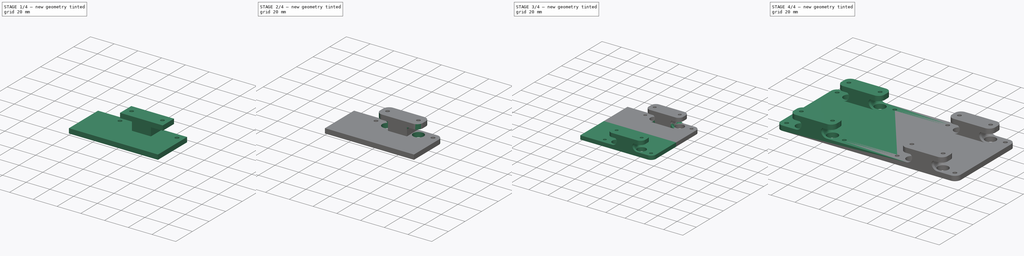
[diagram: build sequence overview — one tinted view per stage of 4, left to right]
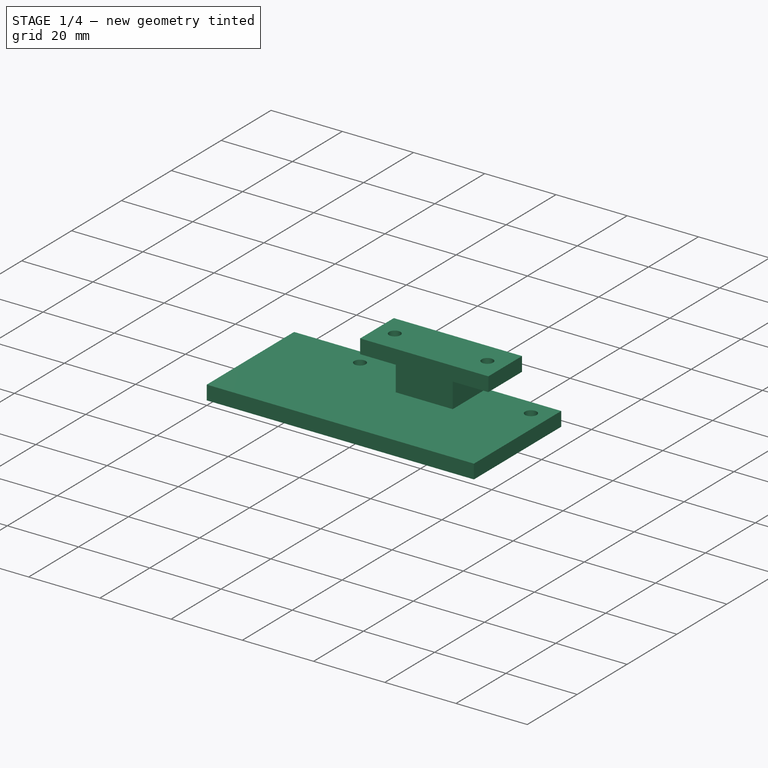
[diagram: stage 1 of 4 — iso view after this stage's code; geometry added in this stage tinted green]
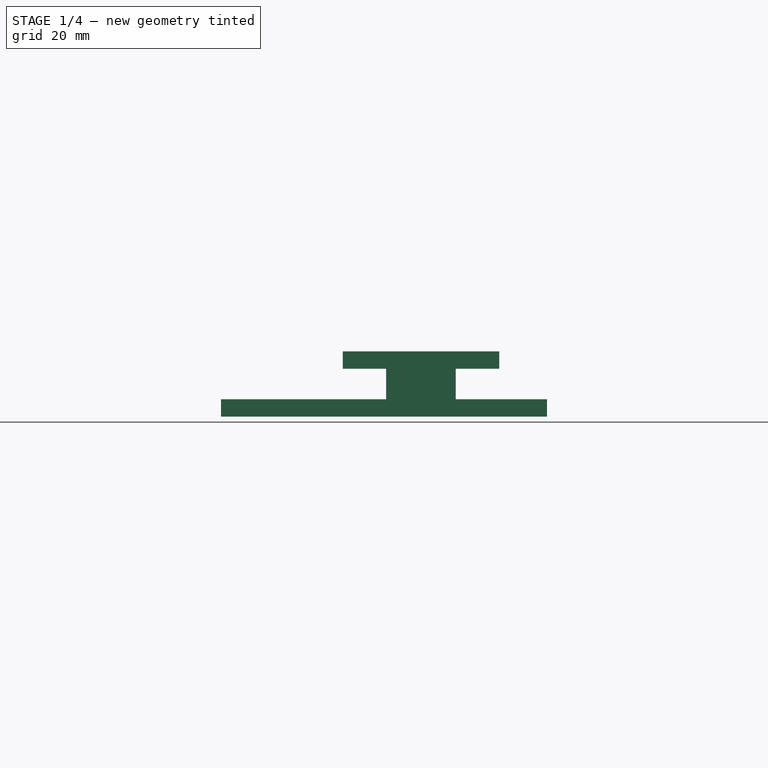
[diagram: stage 1 of 4 — front view after this stage's code; geometry added in this stage tinted green]
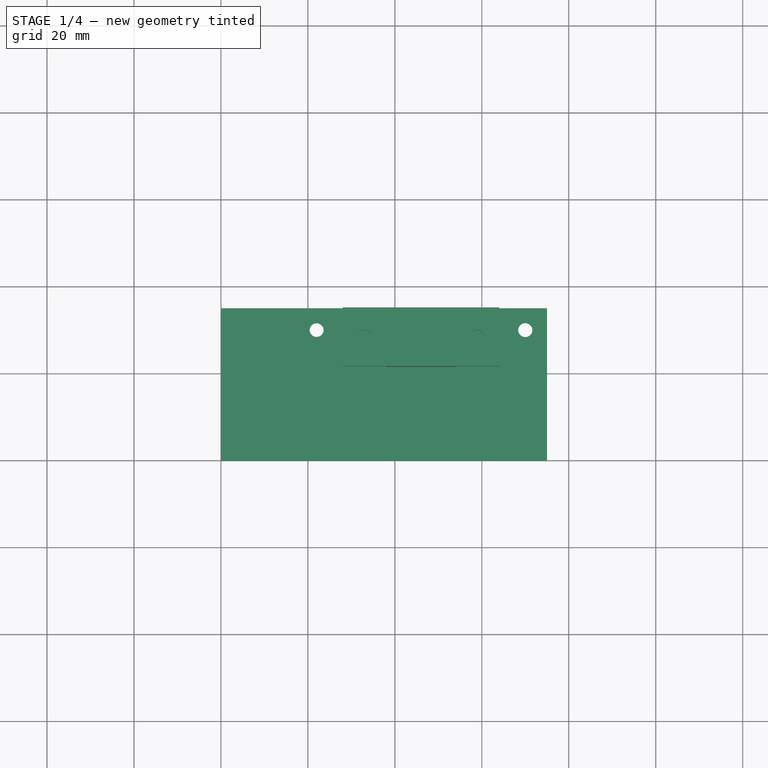
[diagram: stage 1 of 4 — top view after this stage's code; geometry added in this stage tinted green]
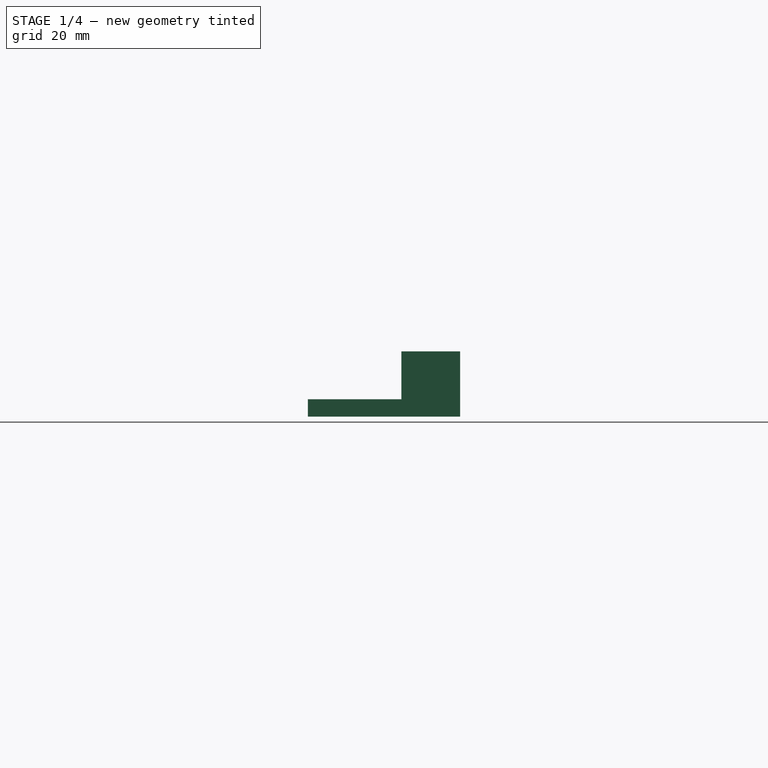
[diagram: stage 1 of 4 — right view after this stage's code; geometry added in this stage tinted green]
FCSTD DOCUMENT  (FreeCAD 0.18R14090 (Git))
Label: BedClamping3_Alt2
License: All rights reserved
LicenseURL: http://en.wikipedia.org/wiki/All_rights_reserved
objects: Sketcher::SketchObject×4, PartDesign::Pad×3, PartDesign::Fillet×2, Part::Mirroring×2, Part::MultiFuse×2, PartDesign::Plane×1, PartDesign::Pocket×1, PartDesign::Chamfer×1, PartDesign::Body×1, App::Part×1, Part::FeaturePython×1
note: 22 computed .brp shape members not serialized (recipe doc carries the construction recipe); baked Part::Feature solids carry a one-line shape summary decoded from their .brp

FEATURE [Sketcher::SketchObject] Sketch  label="C_BaseSketch"
  MapMode = 5
  Support = -> [XY_Plane001]
  sketch-geometry (9):
    g0: LineSegment StartX=0 StartY=0 StartZ=0 EndX=75 EndY=0 EndZ=0
    g1: LineSegment StartX=75 StartY=0 StartZ=0 EndX=75 EndY=35 EndZ=0
    g2: LineSegment StartX=75 StartY=35 StartZ=0 EndX=0 EndY=35 EndZ=0
    g3: LineSegment StartX=0 StartY=35 StartZ=0 EndX=0 EndY=0 EndZ=0
    g4: LineSegment [constr] StartX=70 StartY=35 StartZ=0 EndX=70 EndY=30 EndZ=0
    g5: LineSegment [constr] StartX=70 StartY=30 StartZ=0 EndX=75 EndY=30 EndZ=0
    g6: Circle CenterX=70 CenterY=30 CenterZ=0 NormalX=0 NormalY=0 NormalZ=1 AngleXU=0 Radius=1.63245
    g7: Circle CenterX=22 CenterY=30 CenterZ=0 NormalX=0 NormalY=0 NormalZ=1 AngleXU=0 Radius=1.60669
    g8: LineSegment [constr] StartX=70 StartY=30 StartZ=0 EndX=22 EndY=30 EndZ=0
  constraints (23):
    c: Coincident(g0,g1)
    c: Coincident(g1,g2)
    c: Coincident(g2,g3)
    c: Coincident(g3,g0)
    c: Horizontal(g0)
    c: Horizontal(g2)
    c: Vertical(g1)
    c: Vertical(g3)
    c: Coincident(g0,g-1)
    c: Distance(g1) = 35
    c: Distance(g2) = 75
    c: PointOnObject(g4,g2)
    c: Vertical(g4)
    c: Coincident(g5,g4)
    c: PointOnObject(g5,g1)
    c: Horizontal(g5)
    c: Equal(g5,g4)
    c: Distance(g4) = 5
    c: Coincident(g6,g4)
    c: Coincident(g8,g6)
    c: Coincident(g8,g7)
    c: Horizontal(g8)
    c: Distance(g8) = 48
FEATURE [PartDesign::Pad] Pad  label="C_BasePad"
  Length = 4
  Length2 = 100
  Profile = -> Sketch
  Type = 0
FEATURE [Sketcher::SketchObject] Sketch001  label="C_StandSketch"
  MapMode = 5
  Support = -> [XY_Plane001]
  sketch-geometry (4):
    g0: LineSegment StartX=38 StartY=35 StartZ=0 EndX=54 EndY=35 EndZ=0
    g1: LineSegment StartX=54 StartY=35 StartZ=0 EndX=54 EndY=21.5 EndZ=0
    g2: LineSegment StartX=54 StartY=21.5 StartZ=0 EndX=38 EndY=21.5 EndZ=0
    g3: LineSegment StartX=38 StartY=21.5 StartZ=0 EndX=38 EndY=35 EndZ=0
  constraints (12):
    c: Coincident(g0,g1)
    c: Coincident(g1,g2)
    c: Coincident(g2,g3)
    c: Coincident(g3,g0)
    c: Horizontal(g0)
    c: Horizontal(g2)
    c: Vertical(g1)
    c: Vertical(g3)
    c: Distance(g3) = 13.5
    c: Distance(g0) = 16
    c: DistanceX(g-2,g0) = 38
    c: DistanceY(g-1,g0) = 35
FEATURE [PartDesign::Pad] Pad001  label="C_StandPad"
  BaseFeature = -> Pad
  Length = 15
  Length2 = 100
  Profile = -> Sketch001
  Type = 0
FEATURE [PartDesign::Plane] DatumPlane  label="C_CarriageClipPlane"
  AttachmentOffset = pos=(0,0,11) rot=(0,0,1;0rad)
  MapMode = 5
  Placement = pos=(0,0,11) rot=(0,0,1;0rad)
  Support = -> [XY_Plane001]
FEATURE [Sketcher::SketchObject] Sketch002  label="C_CarriageClipSketch"
  ExternalGeometry = -> [Sketch001]
  MapMode = 5
  Placement = pos=(0,0,11) rot=(0,0,1;0rad)
  Support = -> [DatumPlane]
  sketch-geometry (14):
    g0: LineSegment StartX=64 StartY=35 StartZ=0 EndX=64 EndY=21.5 EndZ=0
    g1: LineSegment StartX=64 StartY=21.5 StartZ=0 EndX=28 EndY=21.5 EndZ=0
    g2: LineSegment StartX=28 StartY=21.5 StartZ=0 EndX=28 EndY=35 EndZ=0
    g3: LineSegment [constr] StartX=28 StartY=28.25 StartZ=0 EndX=33 EndY=28.25 EndZ=0
    g4: LineSegment [constr] StartX=33 StartY=28.25 StartZ=0 EndX=33 EndY=35 EndZ=0
    g5: LineSegment [constr] StartX=33 StartY=28.25 StartZ=0 EndX=33 EndY=21.5 EndZ=0
    g6: LineSegment [constr] StartX=59 StartY=35 StartZ=0 EndX=59 EndY=28.25 EndZ=0
    g7: LineSegment [constr] StartX=59 StartY=28.25 StartZ=0 EndX=59 EndY=21.5 EndZ=0
    g8: LineSegment [constr] StartX=59 StartY=28.25 StartZ=0 EndX=64 EndY=28.25 EndZ=0
    g9: Circle CenterX=33 CenterY=28.25 CenterZ=0 NormalX=0 NormalY=0 NormalZ=1 AngleXU=0 Radius=1.6
    g10: Circle CenterX=59 CenterY=28.25 CenterZ=0 NormalX=0 NormalY=0 NormalZ=1 AngleXU=0 Radius=1.6
    g11: LineSegment StartX=28 StartY=35 StartZ=0 EndX=38 EndY=35 EndZ=0
    g12: LineSegment StartX=38 StartY=35 StartZ=0 EndX=54 EndY=35 EndZ=0
    g13: LineSegment StartX=54 StartY=35 StartZ=0 EndX=64 EndY=35 EndZ=0
  constraints (40):
    c: Coincident(g0,g1)
    c: Coincident(g1,g2)
    c: Horizontal(g1)
    c: Vertical(g0)
    c: Vertical(g2)
    c: PointOnObject(g-3,g1)
    c: PointOnObject(g3,g2)
    c: Horizontal(g3)
    c: Coincident(g4,g3)
    c: Vertical(g4)
    c: Coincident(g5,g3)
    c: Vertical(g5)
    c: Equal(g5,g4)
    c: Vertical(g6)
    c: Coincident(g7,g6)
    c: PointOnObject(g7,g1)
    c: Vertical(g7)
    c: PointOnObject(g5,g1)
    c: Equal(g6,g7)
    c: Coincident(g8,g6)
    c: PointOnObject(g8,g0)
    c: Horizontal(g8)
    c: Equal(g8,g3)
    c: Distance(g3) = 5
    c: Coincident(g9,g3)
    c: Coincident(g10,g6)
    c: Equal(g10,g9)
    c: Radius(g9) = 1.6
    c: Distance(g9,g10) = 26
    c: Coincident(g11,g2)
    c: Coincident(g11,g-3)
    c: Horizontal(g11)
    c: Coincident(g12,g11)
    c: Coincident(g12,g-4)
    c: Coincident(g13,g12)
    c: Coincident(g13,g0)
    c: Horizontal(g13)
    c: Equal(g13,g11)
    c: PointOnObject(g4,g11)
    c: PointOnObject(g6,g13)
FEATURE [PartDesign::Pad] Pad002  label="C_CarriageClipPad"
  BaseFeature = -> Pad001
  Length = 4
  Length2 = 100
  Profile = -> Sketch002
  Type = 0
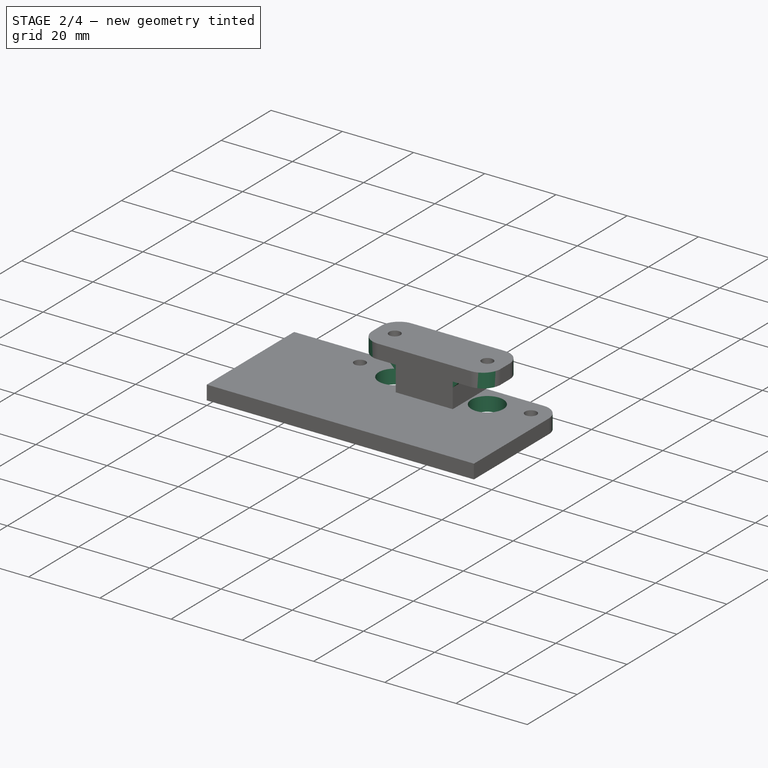
[diagram: stage 2 of 4 — iso view after this stage's code; geometry added in this stage tinted green]
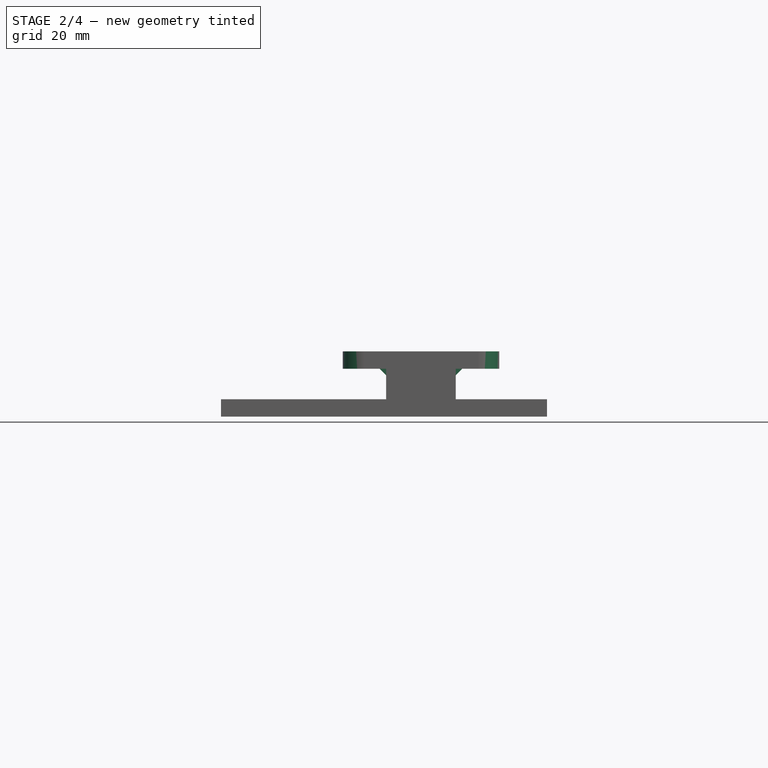
[diagram: stage 2 of 4 — front view after this stage's code; geometry added in this stage tinted green]
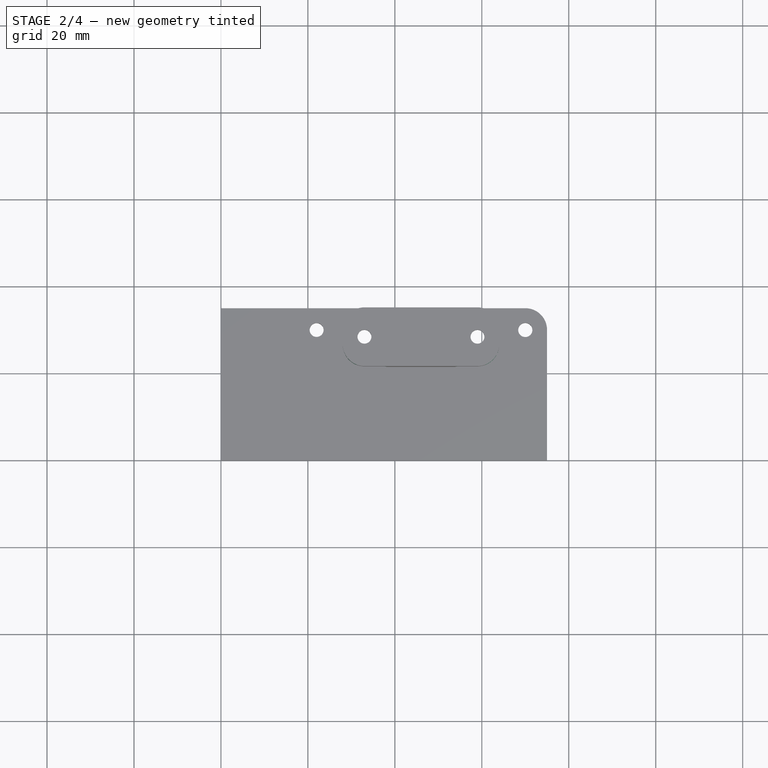
[diagram: stage 2 of 4 — top view after this stage's code; geometry added in this stage tinted green]
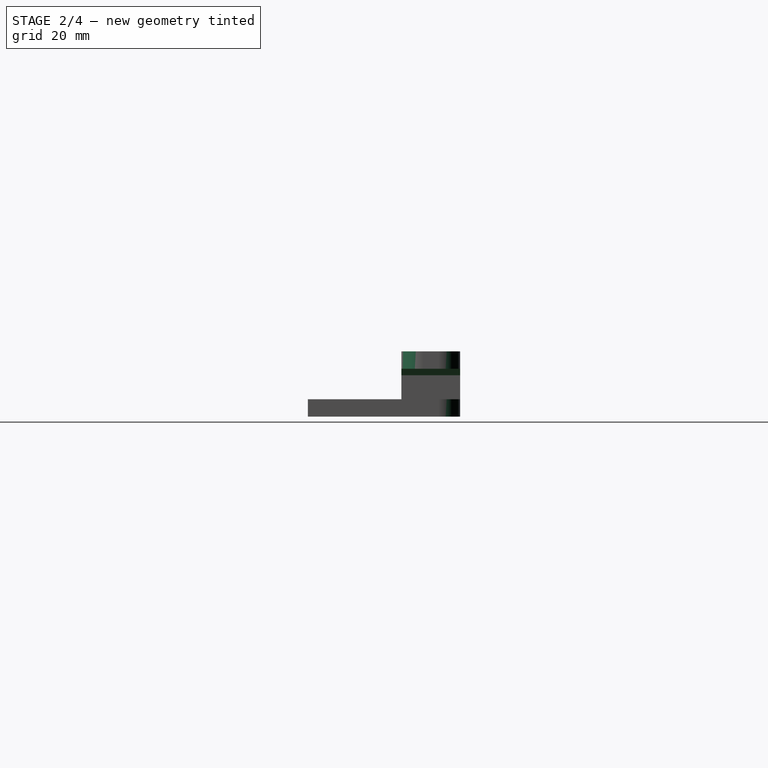
[diagram: stage 2 of 4 — right view after this stage's code; geometry added in this stage tinted green]
FEATURE [Sketcher::SketchObject] Sketch003  label="C_ScrewdriverHoleSketch"
  ExternalGeometry = -> [Sketch002]
  MapMode = 5
  Placement = pos=(0,0,11) rot=(0,0,1;0rad)
  Support = -> [DatumPlane]
  sketch-geometry (2):
    g0: Circle CenterX=33 CenterY=28.25 CenterZ=0 NormalX=0 NormalY=0 NormalZ=1 AngleXU=0 Radius=4.5
    g1: Circle CenterX=59 CenterY=28.25 CenterZ=0 NormalX=0 NormalY=0 NormalZ=1 AngleXU=0 Radius=4.5
  constraints (2):
    c: Equal(g1,g0)
    c: Radius(g0) = 4.5
FEATURE [PartDesign::Pocket] Pocket  label="C_ScrewdriverHolePocket"
  BaseFeature = -> Pad002
  Length = 5
  Length2 = 100
  Profile = -> Sketch003
  Type = 1
FEATURE [PartDesign::Fillet] Fillet  label="C_CornersFillet"
  Base = -> Pocket [Edge59,Edge61,Edge68,Edge70,Edge8]
  BaseFeature = -> Pocket
  Radius = 5
FEATURE [PartDesign::Chamfer] Chamfer  label="C_StandChamfer"
  Base = -> Fillet [Edge45,Edge40]
  BaseFeature = -> Fillet
  Size = 1.5
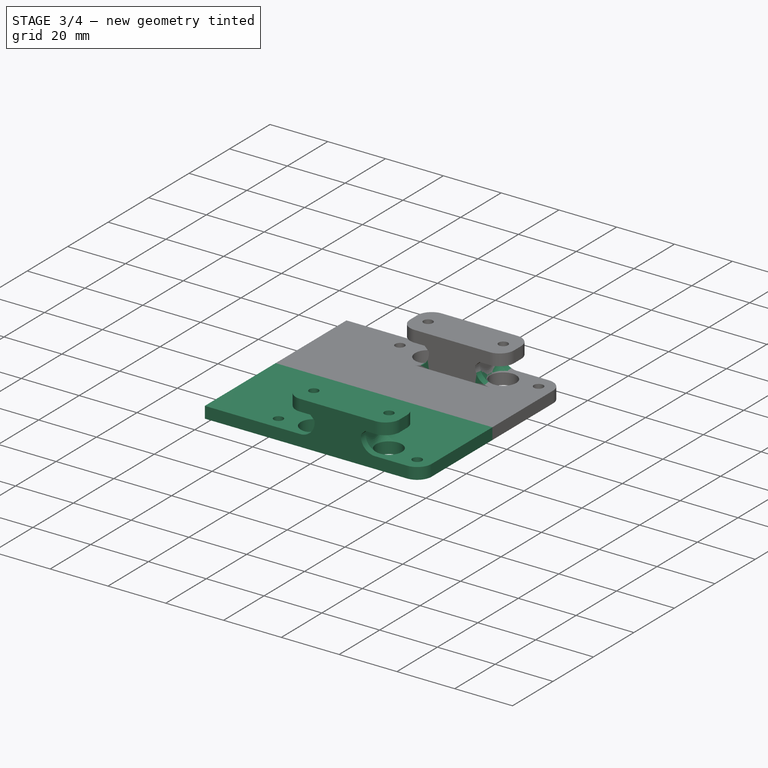
[diagram: stage 3 of 4 — iso view after this stage's code; geometry added in this stage tinted green]
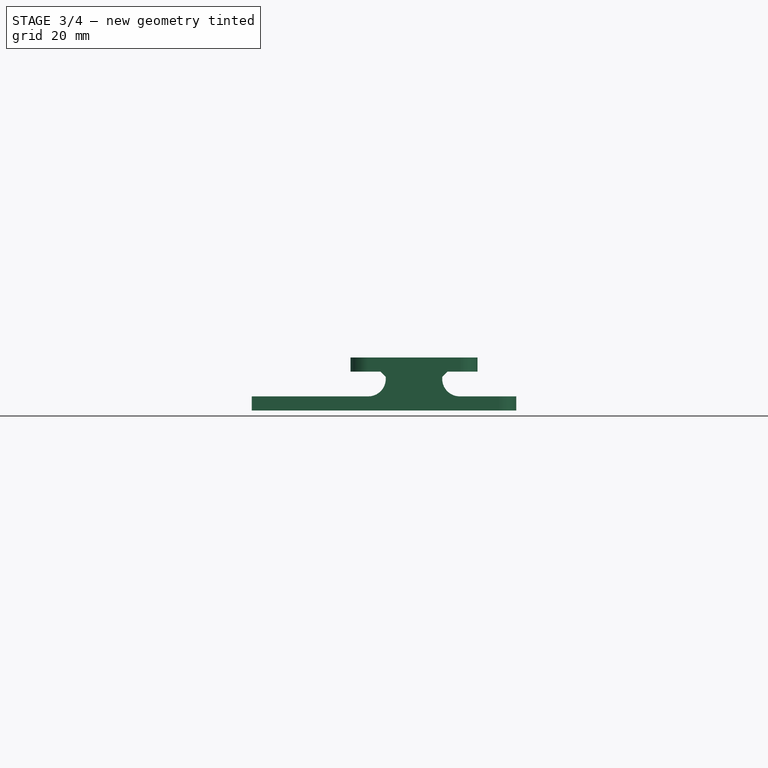
[diagram: stage 3 of 4 — front view after this stage's code; geometry added in this stage tinted green]
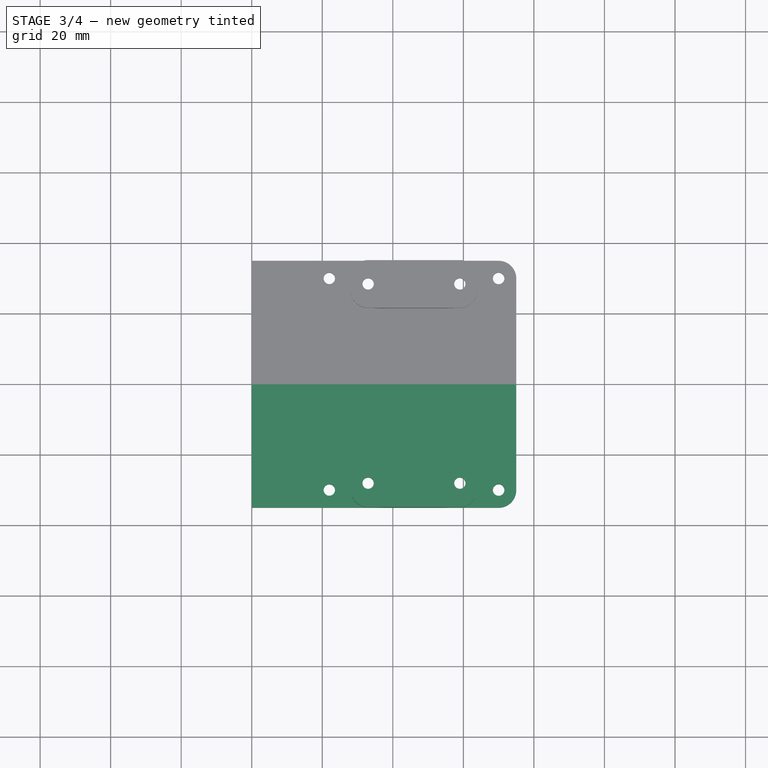
[diagram: stage 3 of 4 — top view after this stage's code; geometry added in this stage tinted green]
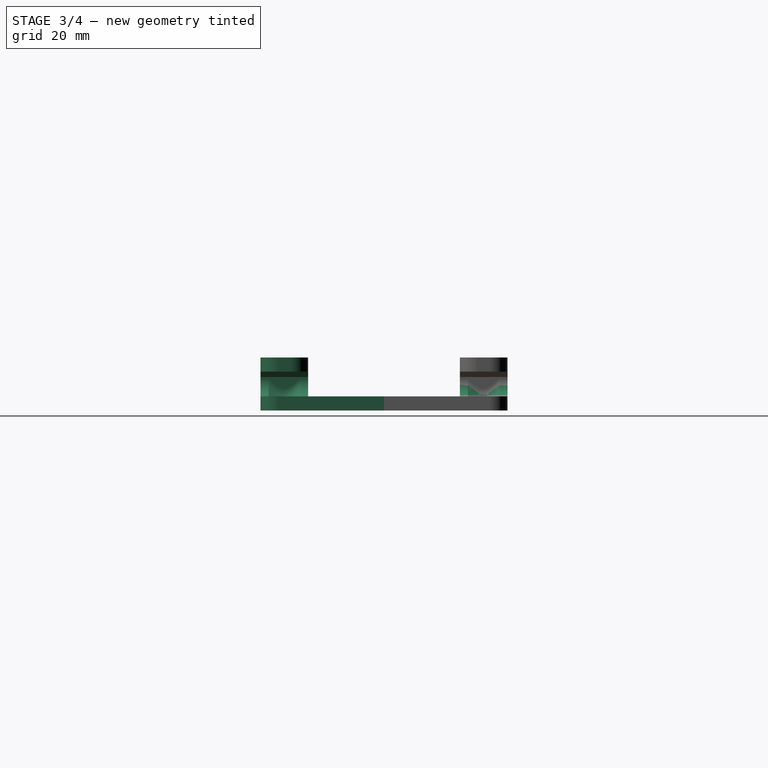
[diagram: stage 3 of 4 — right view after this stage's code; geometry added in this stage tinted green]
FEATURE [PartDesign::Fillet] Fillet001  label="C_StandFillet"
  Base = -> Chamfer [Edge21,Edge3]
  BaseFeature = -> Chamfer
  Radius = 4.96
FEATURE [PartDesign::Body] Body  label="BedClampingBody"
  Group = -> [Sketch,Pad,Sketch001,Pad001,DatumPlane,Sketch002,Pad002,Sketch003,Pocket,Fillet,Chamfer,Fillet001]
  Origin = -> Origin001
  Tip = -> Fillet001
FEATURE [Part::Mirroring] Part__Mirroring  label="BedClamping_Mirror"
  Base = (0,0,0)
  Normal = (0,1,0)
  Source = -> Body
FEATURE [Part::MultiFuse] Fusion  label="BedClamping_HalfFusion"
  Shapes = -> [Part__Mirroring,Body]
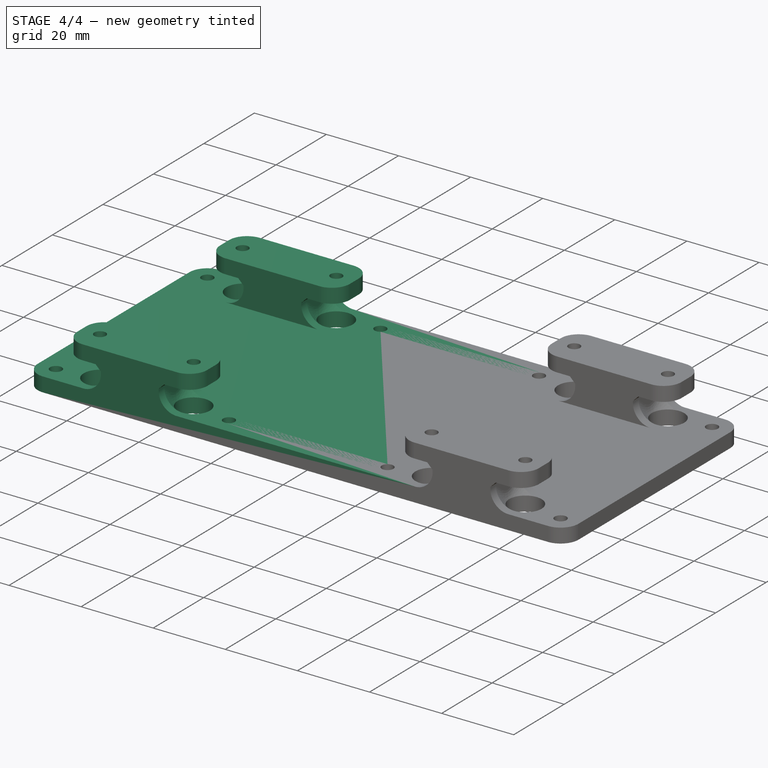
[diagram: stage 4 of 4 — iso view after this stage's code; geometry added in this stage tinted green]
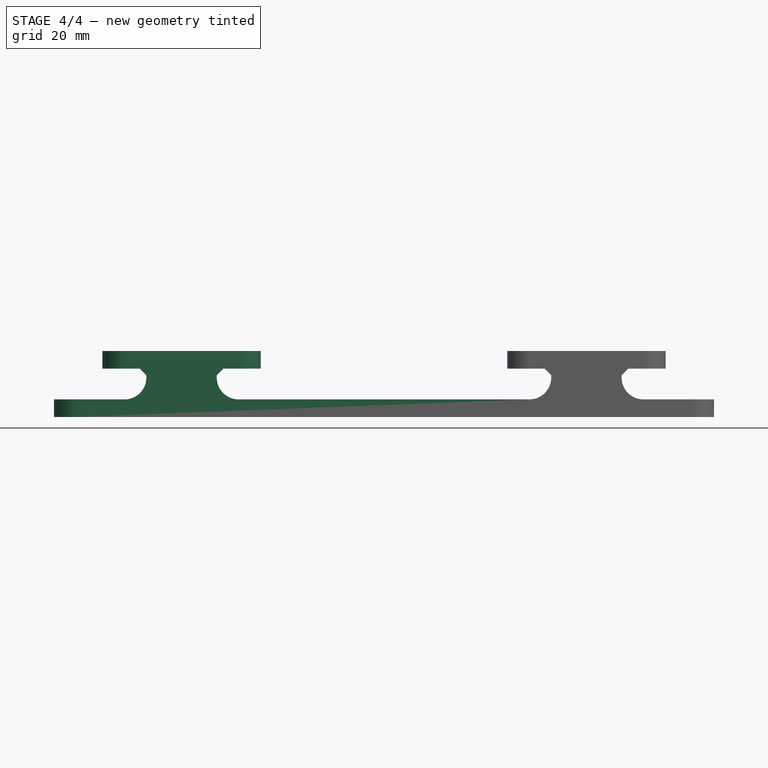
[diagram: stage 4 of 4 — front view after this stage's code; geometry added in this stage tinted green]
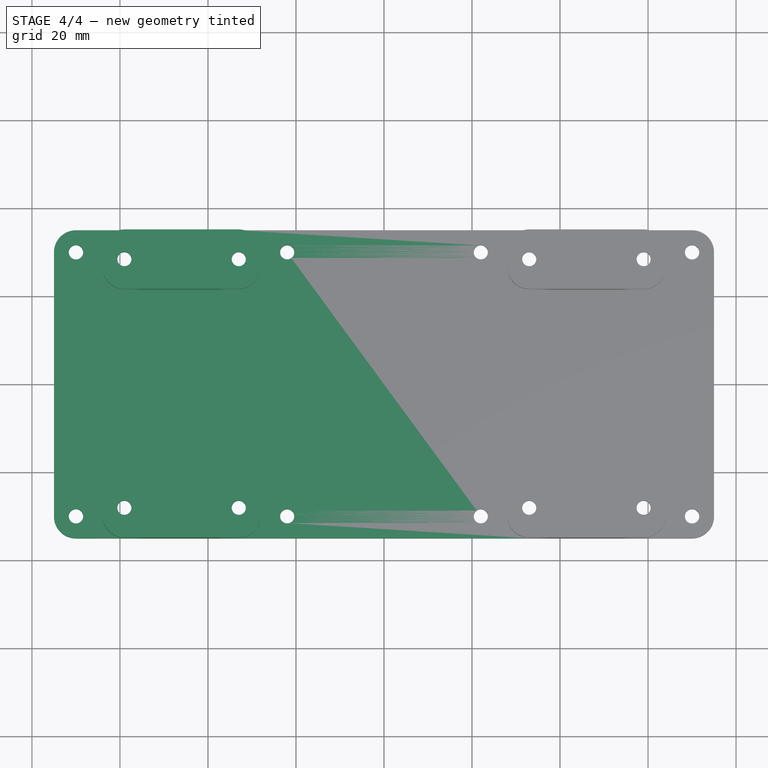
[diagram: stage 4 of 4 — top view after this stage's code; geometry added in this stage tinted green]
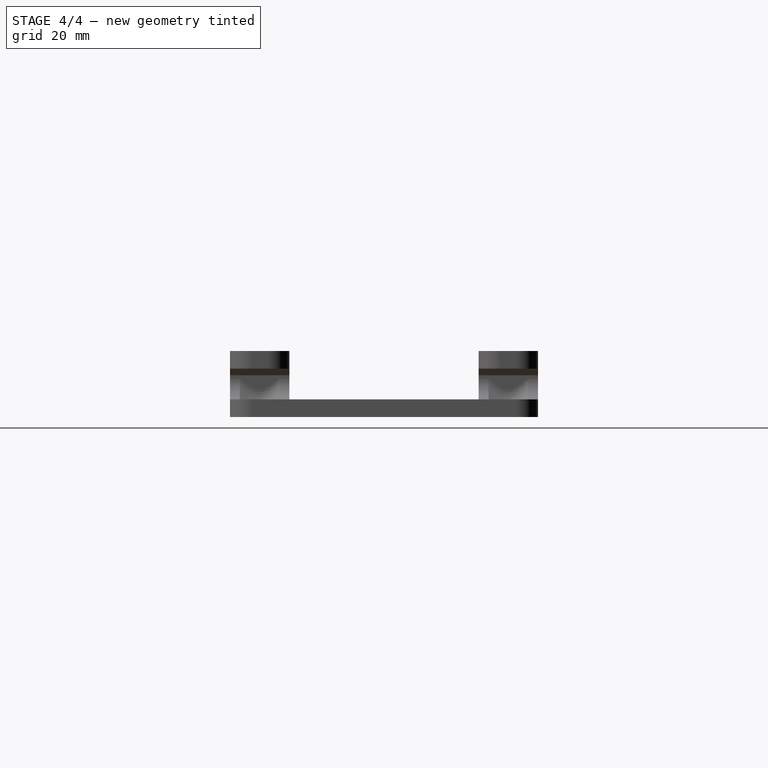
[diagram: stage 4 of 4 — right view after this stage's code; geometry added in this stage tinted green]
FEATURE [Part::Mirroring] Part__Mirroring001  label="BedClamping_HalfFusion_Mirror"
  Base = (0,0,0)
  Normal = (1,0,0)
  Source = -> Fusion
FEATURE [Part::MultiFuse] Fusion001  label="BedClamping_FinalFusion"
  Shapes = -> [Fusion,Part__Mirroring001]
FEATURE [App::Part] Part  label="BedClampingPart"
  Group = -> [Body,Part__Mirroring,Fusion,Part__Mirroring001,Fusion001]
  License = CC BY 3.0
  LicenseURL = http://creativecommons.org/licenses/by/3.0/
  Origin = -> Origin
FEATURE [Part::FeaturePython] refine  label="BedClamping_Refined"  # WARN: FeaturePython — macro-defined, semantics opaque (R4)
  Base = -> Fusion001
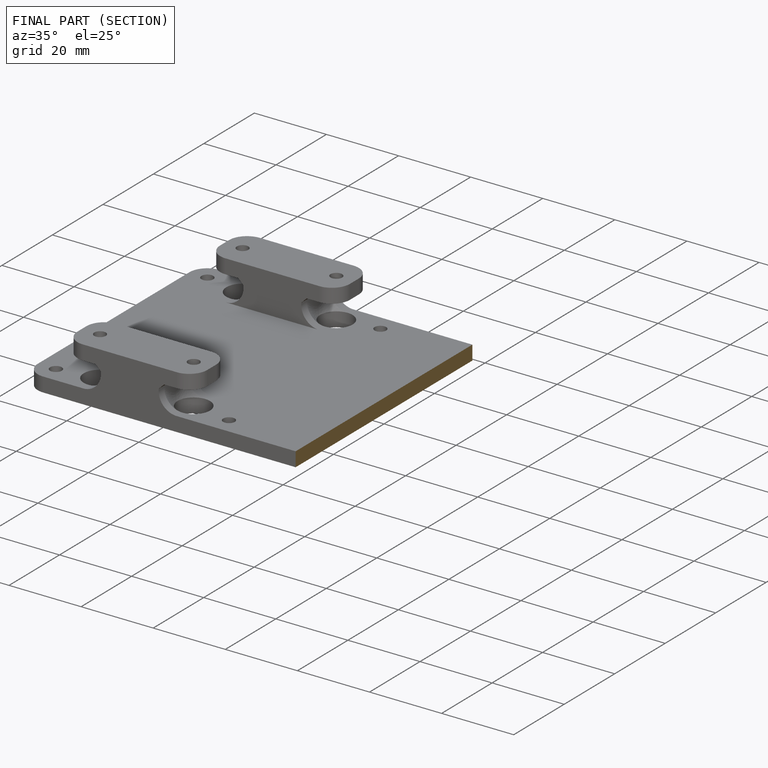
[diagram: finished part — half-section view (interior)]
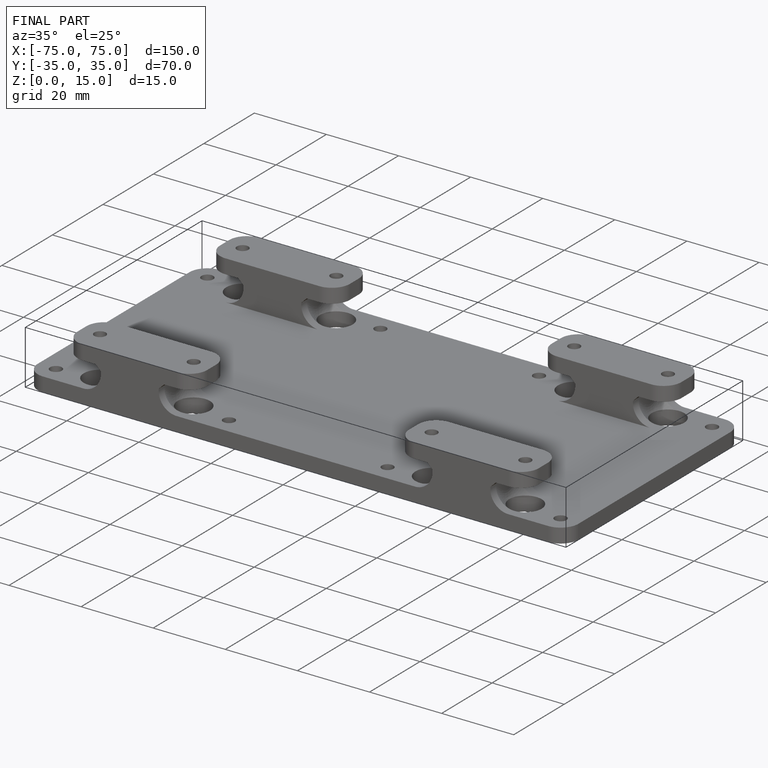
[diagram: finished part — iso view with bounding-box wireframe]
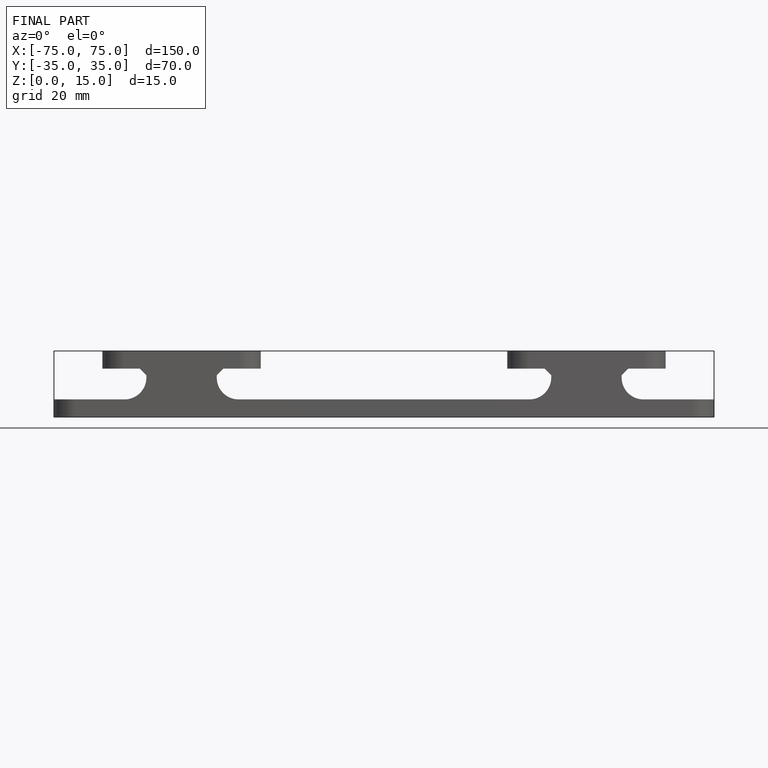
[diagram: finished part — front view with bounding-box wireframe]
